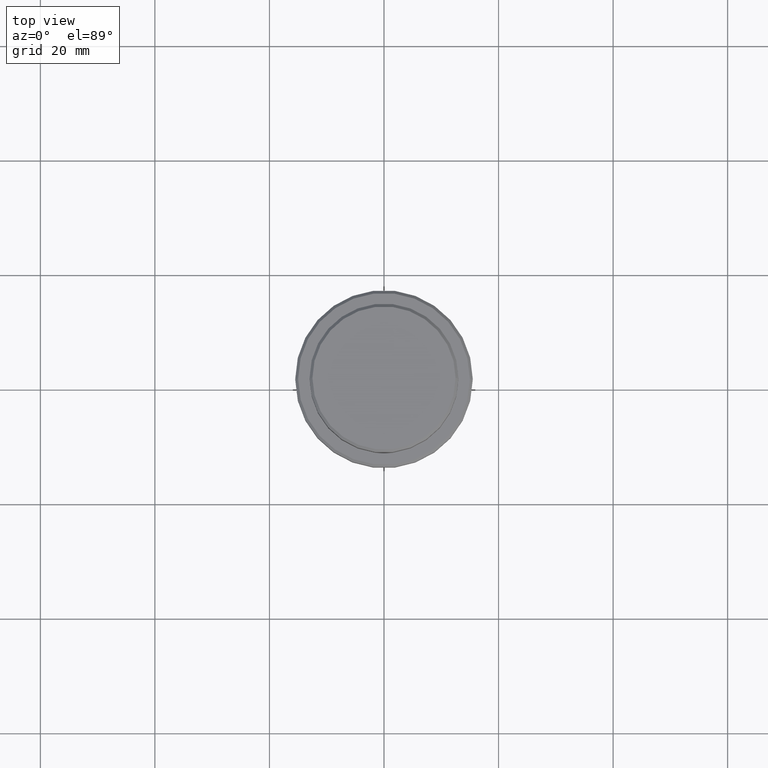
[diagram: clean part render]
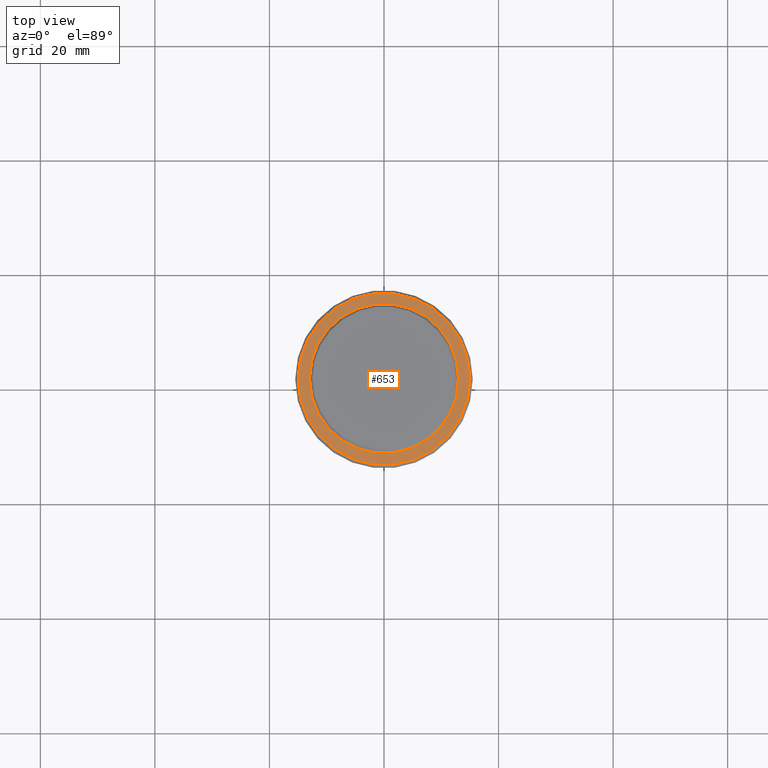
[diagram: same view with one face highlighted and labeled with its STEP entity id]
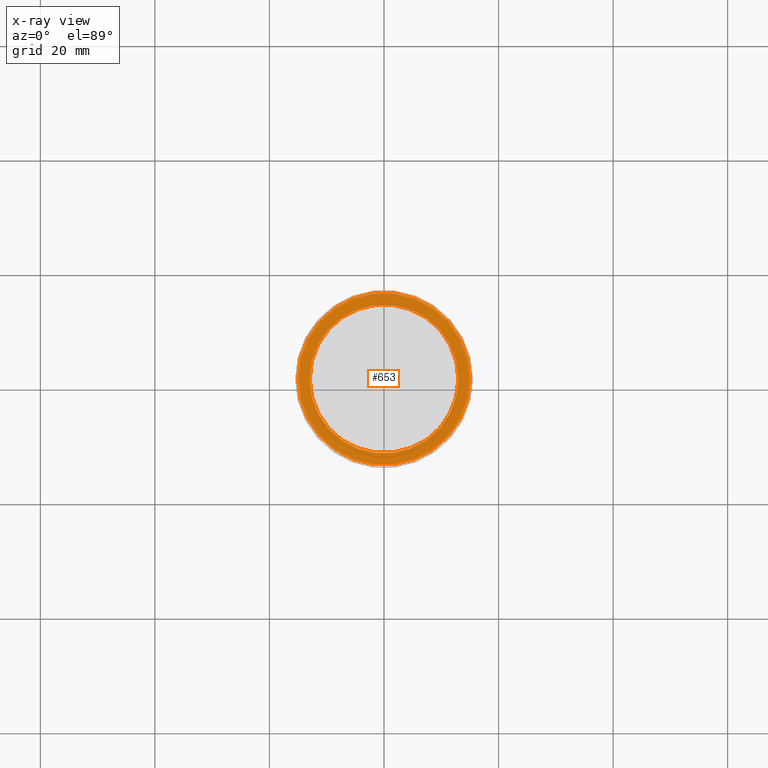
[diagram: x-ray of the same camera — body ghosted, the highlighted face saturated]
A machine part, top view. The second image highlights one B-rep face of the part: STEP entity #653.
The next image is the same camera in x-ray: the body ghosted, the highlighted face saturated — about 0% of this face is hidden behind the body in this view.
In plain terms, the highlighted planar face has unit normal (0, -0, 1).
Its self-contained STEP definition (entity closure, byte-faithful):
#49 = DIRECTION ( 'NONE',  ( 0.000000000000000000, 0.000000000000000000, -1.000000000000000000 ) ) ;
#106 = CIRCLE ( 'NONE', #471, 15.00000000000000000 ) ;
#111 = DIRECTION ( 'NONE',  ( 0.000000000000000000, 0.000000000000000000, -1.000000000000000000 ) ) ;
#140 = EDGE_LOOP ( 'NONE', ( #352, #572 ) ) ;
#202 = CIRCLE ( 'NONE', #912, 12.99999999999999467 ) ;
#205 = CARTESIAN_POINT ( 'NONE',  ( 15.00000000000000000, 1.867586368699713376E-15, -9.000000000000000000 ) ) ;
#216 = FACE_BOUND ( 'NONE', #140, .T. ) ;
#321 = DIRECTION ( 'NONE',  ( 1.000000000000000000, 0.000000000000000000, 0.000000000000000000 ) ) ;
#331 = CARTESIAN_POINT ( 'NONE',  ( 0.000000000000000000, 0.000000000000000000, -9.000000000000000000 ) ) ;
#352 = ORIENTED_EDGE ( 'NONE', *, *, #462, .T. ) ;
#389 = ORIENTED_EDGE ( 'NONE', *, *, #804, .T. ) ;
#392 = DIRECTION ( 'NONE',  ( 1.000000000000000000, 0.000000000000000000, 0.000000000000000000 ) ) ;
#462 = EDGE_CURVE ( 'NONE', #464, #1162, #1188, .T. ) ;
#464 = VERTEX_POINT ( 'NONE', #1105 ) ;
#471 = AXIS2_PLACEMENT_3D ( 'NONE', #761, #1125, #321 ) ;
#557 = CIRCLE ( 'NONE', #676, 15.00000000000000000 ) ;
#572 = ORIENTED_EDGE ( 'NONE', *, *, #1154, .T. ) ;
#653 = ADVANCED_FACE ( 'NONE', ( #1085, #216 ), #1207, .T. ) ;
#660 = DIRECTION ( 'NONE',  ( 0.000000000000000000, -0.000000000000000000, 1.000000000000000000 ) ) ;
#676 = AXIS2_PLACEMENT_3D ( 'NONE', #1138, #1250, #1133 ) ;
#761 = CARTESIAN_POINT ( 'NONE',  ( 0.000000000000000000, 0.000000000000000000, -9.000000000000000000 ) ) ;
#804 = EDGE_CURVE ( 'NONE', #1346, #893, #557, .T. ) ;
#812 = CARTESIAN_POINT ( 'NONE',  ( 0.000000000000000000, 0.000000000000000000, -9.000000000000000000 ) ) ;
#893 = VERTEX_POINT ( 'NONE', #1337 ) ;
#912 = AXIS2_PLACEMENT_3D ( 'NONE', #812, #49, #392 ) ;
#925 = ORIENTED_EDGE ( 'NONE', *, *, #1370, .T. ) ;
#981 = DIRECTION ( 'NONE',  ( 1.000000000000000000, 0.000000000000000000, 0.000000000000000000 ) ) ;
#1047 = AXIS2_PLACEMENT_3D ( 'NONE', #1090, #660, #981 ) ;
#1053 = CARTESIAN_POINT ( 'NONE',  ( -12.99999999999999467, 1.592040838891558504E-15, -9.000000000000000000 ) ) ;
#1085 = FACE_OUTER_BOUND ( 'NONE', #1413, .T. ) ;
#1090 = CARTESIAN_POINT ( 'NONE',  ( 0.000000000000000000, 12.49999999999999289, -9.000000000000000000 ) ) ;
#1105 = CARTESIAN_POINT ( 'NONE',  ( 12.99999999999999467, 0.000000000000000000, -9.000000000000000000 ) ) ;
#1125 = DIRECTION ( 'NONE',  ( -0.000000000000000000, -0.000000000000000000, 1.000000000000000000 ) ) ;
#1133 = DIRECTION ( 'NONE',  ( 1.000000000000000000, 0.000000000000000000, 0.000000000000000000 ) ) ;
#1138 = CARTESIAN_POINT ( 'NONE',  ( 0.000000000000000000, 0.000000000000000000, -9.000000000000000000 ) ) ;
#1154 = EDGE_CURVE ( 'NONE', #1162, #464, #202, .T. ) ;
#1162 = VERTEX_POINT ( 'NONE', #1053 ) ;
#1188 = CIRCLE ( 'NONE', #1367, 12.99999999999999467 ) ;
#1207 = PLANE ( 'NONE',  #1047 ) ;
#1213 = DIRECTION ( 'NONE',  ( 1.000000000000000000, 0.000000000000000000, 0.000000000000000000 ) ) ;
#1250 = DIRECTION ( 'NONE',  ( -0.000000000000000000, -0.000000000000000000, 1.000000000000000000 ) ) ;
#1337 = CARTESIAN_POINT ( 'NONE',  ( -15.00000000000000000, 0.000000000000000000, -9.000000000000000000 ) ) ;
#1346 = VERTEX_POINT ( 'NONE', #205 ) ;
#1367 = AXIS2_PLACEMENT_3D ( 'NONE', #331, #111, #1213 ) ;
#1370 = EDGE_CURVE ( 'NONE', #893, #1346, #106, .T. ) ;
#1413 = EDGE_LOOP ( 'NONE', ( #925, #389 ) ) ;